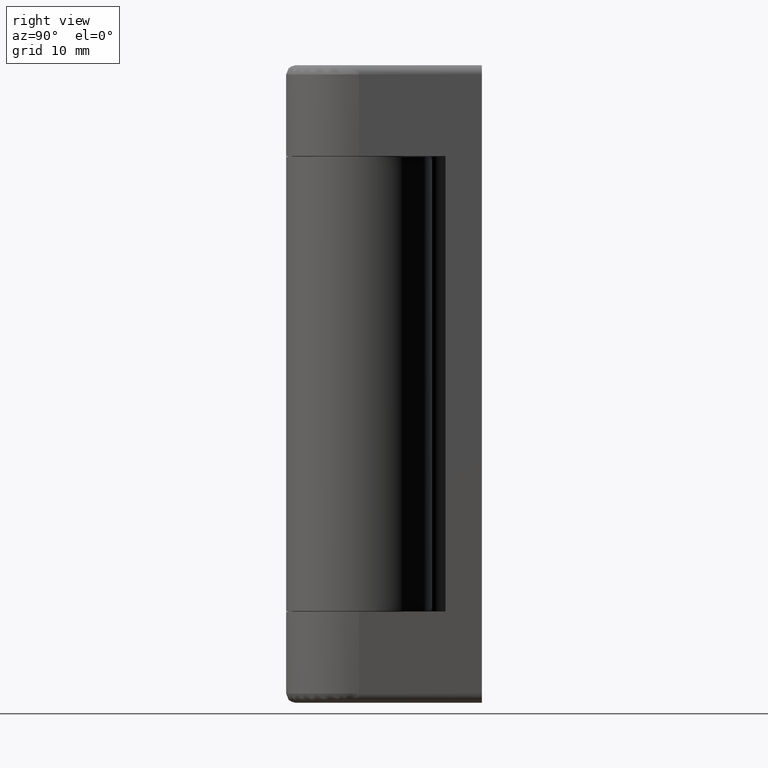
[diagram: clean part render]
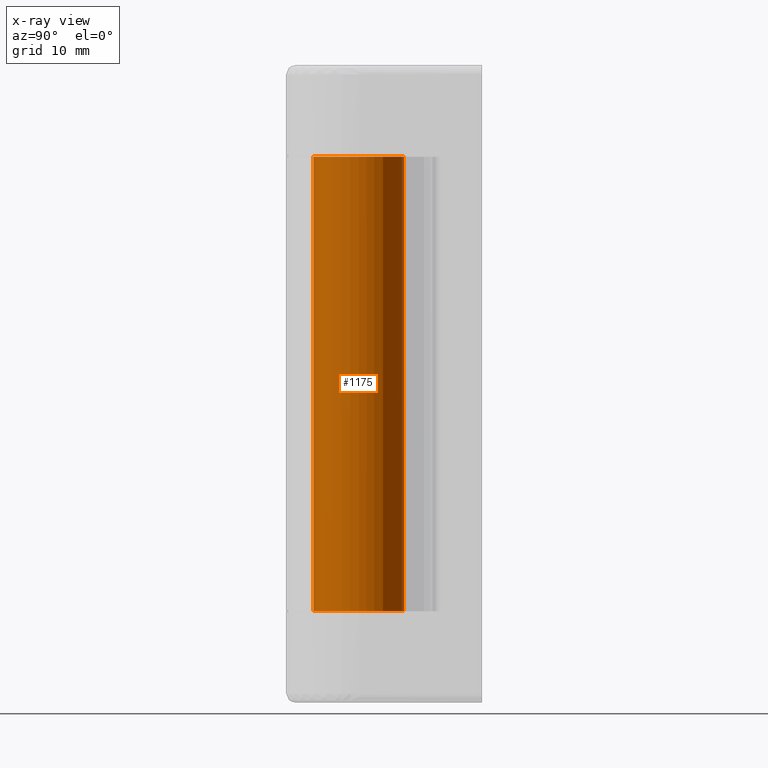
[diagram: x-ray — body ghosted, one internal face saturated and labeled with its STEP entity id]
A machine part, right view, then the same camera in x-ray: the body is ghosted and one INTERNAL B-rep face — a face not visible from any outside direction — is saturated and labeled: STEP entity #1175.
In plain terms, the highlighted face is a freeform B-spline surface patch.
Its self-contained STEP definition (entity closure, byte-faithful):
#1073=CARTESIAN_POINT('',(-0.590171173283792,4.965047631818332,61.197496849999901));
#1074=CARTESIAN_POINT('',(-0.448073643189888,4.981938077243028,61.197496849999894));
#1075=CARTESIAN_POINT('',(-0.305242697674285,4.990673992109334,61.197496849999887));
#1076=CARTESIAN_POINT('',(4.685431294435048,5.295916689783620,61.197496849999894));
#1077=CARTESIAN_POINT('',(4.990673992109334,0.305242697674285,61.197496849999887));
#1078=CARTESIAN_POINT('',(5.295916689783620,-4.685431294435048,61.197496849999894));
#1079=CARTESIAN_POINT('',(0.305242697674285,-4.990673992109334,61.197496849999887));
#1080=CARTESIAN_POINT('',(-0.590171173283792,4.965047631818332,8.771315653750017));
#1081=CARTESIAN_POINT('',(-0.448073643189888,4.981938077243028,8.771315653750015));
#1082=CARTESIAN_POINT('',(-0.305242697674285,4.990673992109334,8.771315653750015));
#1083=CARTESIAN_POINT('',(4.685431294435048,5.295916689783620,8.771315653750015));
#1084=CARTESIAN_POINT('',(4.990673992109334,0.305242697674285,8.771315653750015));
#1085=CARTESIAN_POINT('',(5.295916689783620,-4.685431294435048,8.771315653750015));
#1086=CARTESIAN_POINT('',(0.305242697674285,-4.990673992109334,8.771315653750015));
#1094=(BOUNDED_SURFACE()B_SPLINE_SURFACE(2,1,((#1073,#1080),(#1074,#1081),(#1075,#1082),(#1076,#1083),(#1077,#1084),(#1078,#1085),(#1079,#1086)),.UNSPECIFIED.,.F.,.F.,.U.)B_SPLINE_SURFACE_WITH_KNOTS((3,2,2,3),(2,2),(0.0,0.331370849898476,8.615642097360375,16.899913344822270),(0.0,52.426181196249878),.UNSPECIFIED.)GEOMETRIC_REPRESENTATION_ITEM()RATIONAL_B_SPLINE_SURFACE(((0.977505800795127,0.977505800795127),(0.988284271247462,0.988284271247462),(1.0,1.0),(0.707106781186548,0.707106781186548),(1.0,1.0),(0.707106781186548,0.707106781186548),(1.0,1.0)))REPRESENTATION_ITEM('')SURFACE());
#1095=CARTESIAN_POINT('',(-0.590164402029843,4.965048436675140,10.050003000000039));
#1096=VERTEX_POINT('',#1095);
#1097=CARTESIAN_POINT('',(5.0,0.0,10.050003000000020));
#1098=VERTEX_POINT('',#1097);
#1099=CARTESIAN_POINT('',(-0.590164402029843,4.965048436675141,10.050003000000036));
#1100=CARTESIAN_POINT('',(-0.296117176840853,5.000000000000002,10.050003000000023));
#1101=CARTESIAN_POINT('',(0.0,5.0,10.050003000000020));
#1102=CARTESIAN_POINT('',(5.000000000000001,5.000000000000001,10.050003000000022));
#1103=CARTESIAN_POINT('',(5.0,0.0,10.050003000000020));
#1111=(BOUNDED_CURVE()B_SPLINE_CURVE(2,(#1099,#1100,#1101,#1102,#1103),.UNSPECIFIED.,.F.,.U.)B_SPLINE_CURVE_WITH_KNOTS((3,2,3),(0.229562703999639,0.250000000000000,0.500000000000000),.UNSPECIFIED.)CURVE()GEOMETRIC_REPRESENTATION_ITEM()RATIONAL_B_SPLINE_CURVE((0.956027205946445,0.976056218362443,1.0,0.707106781186548,1.0))REPRESENTATION_ITEM(''));
#1112=EDGE_CURVE('',#1096,#1098,#1111,.T.);
#1113=ORIENTED_EDGE('',*,*,#1112,.T.);
#1114=CARTESIAN_POINT('',(0.305242697741207,-4.990673992105242,10.050003000000020));
#1115=VERTEX_POINT('',#1114);
#1116=CARTESIAN_POINT('',(5.0,0.0,10.050003000000020));
#1117=CARTESIAN_POINT('',(4.999999999999999,-4.703530334402065,10.050003000000022));
#1118=CARTESIAN_POINT('',(0.305242697741207,-4.990673992105242,10.050003000000022));
#1126=(BOUNDED_CURVE()B_SPLINE_CURVE(2,(#1116,#1117,#1118),.UNSPECIFIED.,.F.,.U.)B_SPLINE_CURVE_WITH_KNOTS((3,3),(0.500000000000000,0.739332962237340),.UNSPECIFIED.)CURVE()GEOMETRIC_REPRESENTATION_ITEM()RATIONAL_B_SPLINE_CURVE((1.0,0.719603993288588,0.976072041663282))REPRESENTATION_ITEM(''));
#1127=EDGE_CURVE('',#1098,#1115,#1126,.T.);
#1128=ORIENTED_EDGE('',*,*,#1127,.T.);
#1129=CARTESIAN_POINT('',(0.305242697741207,-4.990673992105242,59.949996999999897));
#1130=VERTEX_POINT('',#1129);
#1131=CARTESIAN_POINT('',(0.305242697741207,-4.990673992105242,59.949996999999897));
#1132=CARTESIAN_POINT('',(0.305242697741207,-4.990673992105242,10.050003000000020));
#1133=QUASI_UNIFORM_CURVE('',1,(#1131,#1132),.UNSPECIFIED.,.F.,.U.);
#1134=EDGE_CURVE('',#1130,#1115,#1133,.T.);
#1135=ORIENTED_EDGE('',*,*,#1134,.F.);
#1136=CARTESIAN_POINT('',(5.0,0.0,59.949996999999897));
#1137=VERTEX_POINT('',#1136);
#1138=CARTESIAN_POINT('',(5.0,0.0,59.949996999999897));
#1139=CARTESIAN_POINT('',(4.999999999999999,-4.703530334402065,59.949996999999868));
#1140=CARTESIAN_POINT('',(0.305242697741207,-4.990673992105242,59.949996999999890));
#1148=(BOUNDED_CURVE()B_SPLINE_CURVE(2,(#1138,#1139,#1140),.UNSPECIFIED.,.F.,.U.)B_SPLINE_CURVE_WITH_KNOTS((3,3),(0.500000000000000,0.739332962237340),.UNSPECIFIED.)CURVE()GEOMETRIC_REPRESENTATION_ITEM()RATIONAL_B_SPLINE_CURVE((1.0,0.719603993288588,0.976072041663282))REPRESENTATION_ITEM(''));
#1149=EDGE_CURVE('',#1137,#1130,#1148,.T.);
#1150=ORIENTED_EDGE('',*,*,#1149,.F.);
#1151=CARTESIAN_POINT('',(-0.590164485393478,4.965048426766337,59.949996999999897));
#1152=VERTEX_POINT('',#1151);
#1153=CARTESIAN_POINT('',(-0.590164485393478,4.965048426766337,59.949996999999897));
#1154=CARTESIAN_POINT('',(-0.296117218963308,4.999999999999999,59.949996999999890));
#1155=CARTESIAN_POINT('',(0.0,5.0,59.949996999999897));
#1156=CARTESIAN_POINT('',(5.000000000000001,5.000000000000001,59.949996999999890));
#1157=CARTESIAN_POINT('',(5.0,0.0,59.949996999999897));
#1165=(BOUNDED_CURVE()B_SPLINE_CURVE(2,(#1153,#1154,#1155,#1156,#1157),.UNSPECIFIED.,.F.,.U.)B_SPLINE_CURVE_WITH_KNOTS((3,2,3),(0.229562701162057,0.250000000000000,0.500000000000000),.UNSPECIFIED.)CURVE()GEOMETRIC_REPRESENTATION_ITEM()RATIONAL_B_SPLINE_CURVE((0.956027200384657,0.976056215038010,1.0,0.707106781186548,1.0))REPRESENTATION_ITEM(''));
#1166=EDGE_CURVE('',#1152,#1137,#1165,.T.);
#1167=ORIENTED_EDGE('',*,*,#1166,.F.);
#1168=CARTESIAN_POINT('',(-0.590164485393478,4.965048426766337,59.949996999999897));
#1169=CARTESIAN_POINT('',(-0.590164402029843,4.965048436675140,10.050003000000039));
#1170=QUASI_UNIFORM_CURVE('',1,(#1168,#1169),.UNSPECIFIED.,.F.,.U.);
#1171=EDGE_CURVE('',#1152,#1096,#1170,.T.);
#1172=ORIENTED_EDGE('',*,*,#1171,.T.);
#1173=EDGE_LOOP('',(#1113,#1128,#1135,#1150,#1167,#1172));
#1174=FACE_OUTER_BOUND('',#1173,.T.);
#1175=ADVANCED_FACE('',(#1174),#1094,.F.);